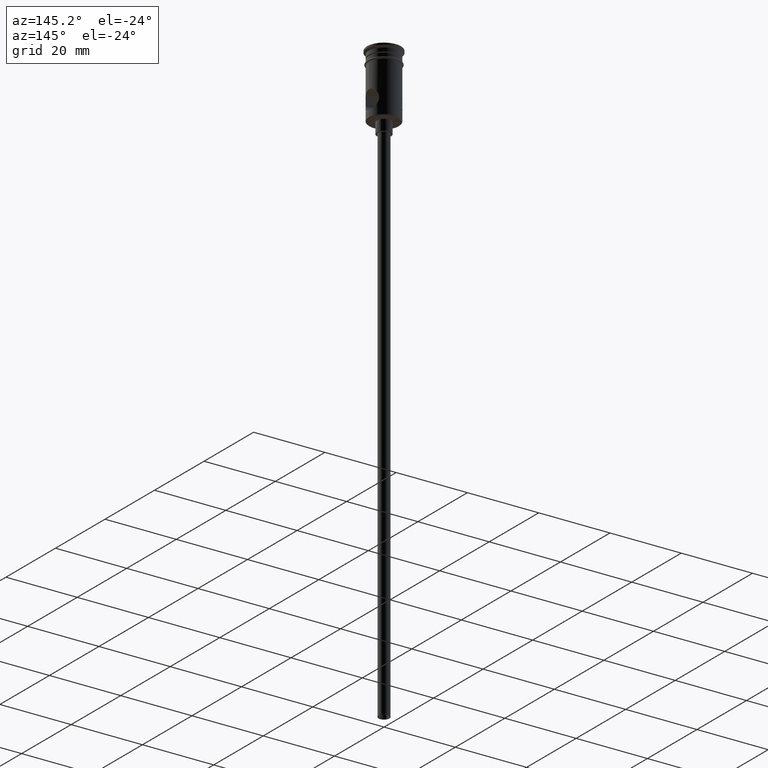
[diagram: clean part render]
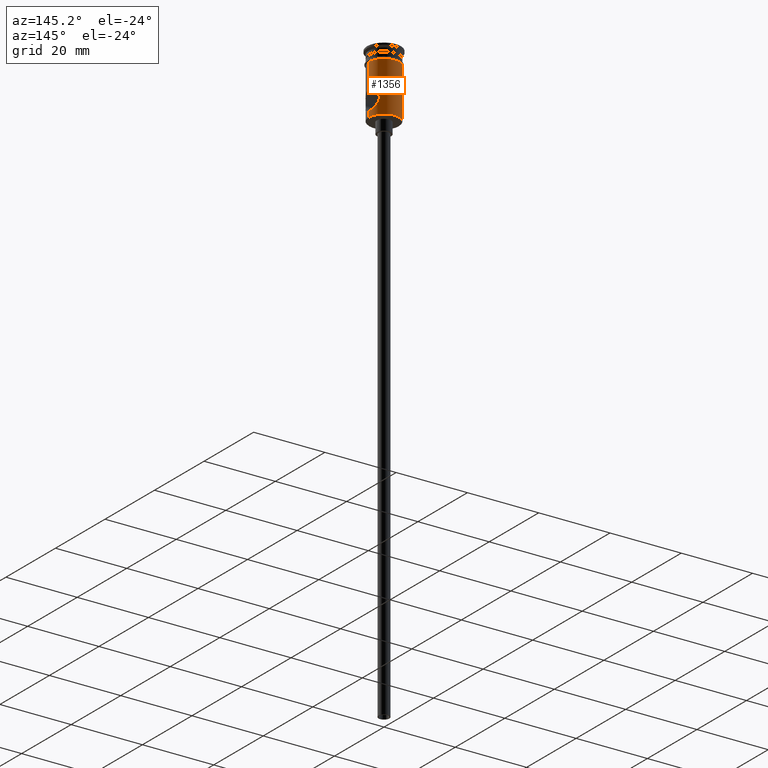
[diagram: same view with one face highlighted and labeled with its STEP entity id]
A machine part, auxiliary view. The second image highlights one B-rep face of the part: STEP entity #1356.
In plain terms, the highlighted cylindrical surface (edge-blend (fillet) strip) has radius 4.25 mm, axis along (-0, -0, 1).
Its self-contained STEP definition (entity closure, byte-faithful):
#21 = LINE ( 'NONE', #1350, #1264 ) ;
#47 = B_SPLINE_CURVE_WITH_KNOTS ( 'NONE', 3,
 ( #1093, #986, #1223, #672, #798, #1105, #126, #450, #1349, #349, #476, #56, #272, #932, #715, #602, #1036, #1392, #279, #412, #1297, #270, #1151, #328, #1218, #1206, #549, #192, #436, #1102, #206, #1304 ),
 .UNSPECIFIED., .F., .F.,
 ( 4, 2, 2, 2, 2, 2, 2, 2, 2, 2, 2, 2, 2, 2, 2, 4 ),
 ( 0.000000000000000000, 0.0005541219304595177862, 0.001108243860919035572, 0.002216487721838075482, 0.002770609652297595545, 0.003324731582757115608, 0.003878853513216635237, 0.004432975443676155300, 0.004987097374135674929, 0.005541219304595194559, 0.006095341235054715055, 0.006649463165514233817, 0.007203585095973753447, 0.007757707026433273076, 0.008311828956892794440, 0.008865950887352312335 ),
 .UNSPECIFIED. ) ;
#51 = ORIENTED_EDGE ( 'NONE', *, *, #1226, .T. ) ;
#53 = EDGE_CURVE ( 'NONE', #372, #1227, #21, .T. ) ;
#56 = CARTESIAN_POINT ( 'NONE',  ( 3.362015581049109247, 2.601310859038222123, -14.40956275273693521 ) ) ;
#60 = CARTESIAN_POINT ( 'NONE',  ( -4.237714452335332282, 0.3710614493120016899, -10.76887567396049938 ) ) ;
#69 = EDGE_CURVE ( 'NONE', #656, #1109, #170, .T. ) ;
#91 = CARTESIAN_POINT ( 'NONE',  ( -3.712306572358252232, 2.073768640790504936, -11.68546380521985384 ) ) ;
#92 = ORIENTED_EDGE ( 'NONE', *, *, #1185, .F. ) ;
#106 = CARTESIAN_POINT ( 'NONE',  ( -3.463585092110388786, 2.464449046115352537, -12.26684130713697840 ) ) ;
#124 = B_SPLINE_CURVE_WITH_KNOTS ( 'NONE', 3,
 ( #836, #1037, #60, #962, #426, #1332, #863, #91, #200, #317, #106, #448, #339, #781, #418, #551, #1424, #976, #895, #1347, #770, #1220, #670, #984, #530, #756, #521, #1433, #872, #761 ),
 .UNSPECIFIED., .F., .F.,
 ( 4, 2, 2, 2, 2, 2, 2, 2, 2, 2, 2, 2, 2, 2, 4 ),
 ( 0.008865950887352312335, 0.009419240771521925071, 0.009972530655691537807, 0.01107911042403076501, 0.01163240030820037949, 0.01218569019236999396, 0.01273898007653961016, 0.01329226996070922463, 0.01384555984487884084, 0.01439884972904845531, 0.01495213961321806978, 0.01550542949738768425, 0.01605871938155729872, 0.01661200926572691319, 0.01771858903406614560 ),
 .UNSPECIFIED. ) ;
#126 = CARTESIAN_POINT ( 'NONE',  ( 3.903649545419221045, 1.703087824547434570, -15.68708491731533883 ) ) ;
#170 = LINE ( 'NONE', #267, #1215 ) ;
#187 = VERTEX_POINT ( 'NONE', #796 ) ;
#192 = CARTESIAN_POINT ( 'NONE',  ( 4.155442691875919969, 0.9081020294093200551, -10.89791699256592494 ) ) ;
#200 = CARTESIAN_POINT ( 'NONE',  ( -3.647847344689137294, 2.183825531822105592, -11.81953350730051788 ) ) ;
#205 = ORIENTED_EDGE ( 'NONE', *, *, #1290, .F. ) ;
#206 = CARTESIAN_POINT ( 'NONE',  ( 4.249999999999996447, 0.1849937454683881766, -10.74999999999999822 ) ) ;
#247 = AXIS2_PLACEMENT_3D ( 'NONE', #300, #741, #935 ) ;
#267 = CARTESIAN_POINT ( 'NONE',  ( 4.249999999999997335, 0.000000000000000000, 0.000000000000000000 ) ) ;
#270 = CARTESIAN_POINT ( 'NONE',  ( 3.647647208285519582, 2.184164315469646400, -11.81995465034544956 ) ) ;
#272 = CARTESIAN_POINT ( 'NONE',  ( 3.317732867736307600, 2.656581032706775591, -14.23383826006679698 ) ) ;
#279 = CARTESIAN_POINT ( 'NONE',  ( 3.360185467375182533, 2.603675625495278645, -12.59704781336165524 ) ) ;
#283 = DIRECTION ( 'NONE',  ( -0.000000000000000000, -0.000000000000000000, 1.000000000000000000 ) ) ;
#300 = CARTESIAN_POINT ( 'NONE',  ( 0.000000000000000000, 0.000000000000000000, -3.799999999999998934 ) ) ;
#317 = CARTESIAN_POINT ( 'NONE',  ( -3.523640592887602896, 2.379042071033715455, -12.10959703295216450 ) ) ;
#328 = CARTESIAN_POINT ( 'NONE',  ( 3.840622235673528007, 1.825278692726477692, -11.43557704835951760 ) ) ;
#329 = CARTESIAN_POINT ( 'NONE',  ( 4.249999999999997335, 0.000000000000000000, -17.79999999999995808 ) ) ;
#339 = CARTESIAN_POINT ( 'NONE',  ( -3.317391764057896264, 2.657012432191005136, -12.76717152618819284 ) ) ;
#349 = CARTESIAN_POINT ( 'NONE',  ( 3.523702571072897083, 2.378944658106735499, -14.89054770374115755 ) ) ;
#350 = DIRECTION ( 'NONE',  ( -0.000000000000000000, -0.000000000000000000, 1.000000000000000000 ) ) ;
#368 = ORIENTED_EDGE ( 'NONE', *, *, #615, .F. ) ;
#370 = DIRECTION ( 'NONE',  ( -0.000000000000000000, -0.000000000000000000, 1.000000000000000000 ) ) ;
#372 = VERTEX_POINT ( 'NONE', #1381 ) ;
#384 = CIRCLE ( 'NONE', #247, 4.249999999999999112 ) ;
#411 = CARTESIAN_POINT ( 'NONE',  ( 0.000000000000000000, 0.000000000000000000, -17.79999999999995808 ) ) ;
#412 = CARTESIAN_POINT ( 'NONE',  ( 3.463282699767082029, 2.464882569099720477, -12.26760260682620718 ) ) ;
#418 = CARTESIAN_POINT ( 'NONE',  ( -3.240527330953798746, 2.749815025658500112, -13.31270839782863291 ) ) ;
#426 = CARTESIAN_POINT ( 'NONE',  ( -4.155620439744574846, 0.9072158869068334131, -10.89763742324026552 ) ) ;
#436 = CARTESIAN_POINT ( 'NONE',  ( 4.190033994520313776, 0.7344077564868169983, -10.84346068291941201 ) ) ;
#448 = CARTESIAN_POINT ( 'NONE',  ( -3.360805570480984716, 2.602867017081773149, -12.59486312964815191 ) ) ;
#450 = CARTESIAN_POINT ( 'NONE',  ( 3.713419268557901276, 2.071747888570477425, -15.31678227358735889 ) ) ;
#454 = CARTESIAN_POINT ( 'NONE',  ( 4.249999999999997335, -5.964156999285768506E-20, -10.75000000000000000 ) ) ;
#467 = DIRECTION ( 'NONE',  ( -0.000000000000000000, -0.000000000000000000, 1.000000000000000000 ) ) ;
#476 = CARTESIAN_POINT ( 'NONE',  ( 3.464973689711408511, 2.462503661352578810, -14.73701184486718319 ) ) ;
#497 = DIRECTION ( 'NONE',  ( -1.000000000000000000, 0.000000000000000000, 0.000000000000000000 ) ) ;
#521 = CARTESIAN_POINT ( 'NONE',  ( -4.067922794682170107, 1.242497466100458858, -15.95989443293908927 ) ) ;
#530 = CARTESIAN_POINT ( 'NONE',  ( -3.901047162632663934, 1.693811570780205056, -15.67366377900273555 ) ) ;
#538 = CIRCLE ( 'NONE', #1388, 4.249999999999997335 ) ;
#546 = VERTEX_POINT ( 'NONE', #454 ) ;
#549 = CARTESIAN_POINT ( 'NONE',  ( 4.068014576300313934, 1.242421292593817173, -11.03994418658763088 ) ) ;
#551 = CARTESIAN_POINT ( 'NONE',  ( -3.240215677518331283, 2.750182252353511991, -13.68181968656044667 ) ) ;
#602 = CARTESIAN_POINT ( 'NONE',  ( 3.240228426298894515, 2.750167230217083425, -13.31605301161300225 ) ) ;
#610 = ORIENTED_EDGE ( 'NONE', *, *, #954, .T. ) ;
#615 = EDGE_CURVE ( 'NONE', #372, #187, #124, .T. ) ;
#656 = VERTEX_POINT ( 'NONE', #329 ) ;
#670 = CARTESIAN_POINT ( 'NONE',  ( -3.712426123095563746, 2.073528200962002188, -15.31476372687120246 ) ) ;
#672 = CARTESIAN_POINT ( 'NONE',  ( 4.190603293377628269, 0.7309107395663115847, -16.15743406878304711 ) ) ;
#683 = CARTESIAN_POINT ( 'NONE',  ( 4.249999999999997335, 0.000000000000000000, -16.25000000000000000 ) ) ;
#696 = CARTESIAN_POINT ( 'NONE',  ( 0.000000000000000000, 0.000000000000000000, 0.000000000000000000 ) ) ;
#703 = EDGE_LOOP ( 'NONE', ( #51, #610, #368, #1233, #92, #205, #724, #1073 ) ) ;
#715 = CARTESIAN_POINT ( 'NONE',  ( 3.240514175250544415, 2.749830527279015335, -13.68891363090301461 ) ) ;
#716 = FACE_OUTER_BOUND ( 'NONE', #703, .T. ) ;
#724 = ORIENTED_EDGE ( 'NONE', *, *, #1014, .F. ) ;
#741 = DIRECTION ( 'NONE',  ( -0.000000000000000000, -0.000000000000000000, 1.000000000000000000 ) ) ;
#756 = CARTESIAN_POINT ( 'NONE',  ( -4.015423691679791851, 1.401263422304992012, -15.87281956388753379 ) ) ;
#761 = CARTESIAN_POINT ( 'NONE',  ( -4.249999999999997335, 0.000000000000000000, -16.25000000000000000 ) ) ;
#770 = CARTESIAN_POINT ( 'NONE',  ( -3.522745161808382264, 2.380353866525853679, -14.88812900666103900 ) ) ;
#781 = CARTESIAN_POINT ( 'NONE',  ( -3.256546954943039474, 2.731246073005494157, -13.12980069484267176 ) ) ;
#796 = CARTESIAN_POINT ( 'NONE',  ( -4.249999999999997335, 0.000000000000000000, -16.25000000000000000 ) ) ;
#798 = CARTESIAN_POINT ( 'NONE',  ( 4.155334731455366359, 0.9083529674580627100, -16.10190042141340427 ) ) ;
#828 = DIRECTION ( 'NONE',  ( -0.000000000000000000, -0.000000000000000000, 1.000000000000000000 ) ) ;
#836 = CARTESIAN_POINT ( 'NONE',  ( -4.249999999999997335, 5.205345311974756415E-16, -10.75000000000000000 ) ) ;
#847 = CARTESIAN_POINT ( 'NONE',  ( -4.249999999999999112, 5.204748896376249713E-16, -3.799999999999998934 ) ) ;
#863 = CARTESIAN_POINT ( 'NONE',  ( -3.903270111302728829, 1.704091631636142301, -11.31349511279738351 ) ) ;
#872 = CARTESIAN_POINT ( 'NONE',  ( -4.249999999999997335, 0.3748030667232212787, -16.25000000000000000 ) ) ;
#895 = CARTESIAN_POINT ( 'NONE',  ( -3.360420657424080026, 2.603382055344573232, -14.40388255281498076 ) ) ;
#924 = DIRECTION ( 'NONE',  ( 1.000000000000000000, 0.000000000000000000, 0.000000000000000000 ) ) ;
#932 = CARTESIAN_POINT ( 'NONE',  ( 3.257287351234153583, 2.730357719509510339, -13.87561695753797686 ) ) ;
#935 = DIRECTION ( 'NONE',  ( 1.000000000000000000, 0.000000000000000000, 0.000000000000000000 ) ) ;
#954 = EDGE_CURVE ( 'NONE', #1188, #187, #1271, .T. ) ;
#962 = CARTESIAN_POINT ( 'NONE',  ( -4.190207837038134819, 0.7335316360740457009, -10.84318649086376318 ) ) ;
#976 = CARTESIAN_POINT ( 'NONE',  ( -3.316708597254388824, 2.657854032008955869, -14.22930869200700954 ) ) ;
#982 = CARTESIAN_POINT ( 'NONE',  ( 4.249999999999999112, 0.000000000000000000, -3.799999999999998934 ) ) ;
#984 = CARTESIAN_POINT ( 'NONE',  ( -3.839379489766063802, 1.827783371516099153, -15.56206074870781109 ) ) ;
#986 = CARTESIAN_POINT ( 'NONE',  ( 4.249999999999999112, 0.1876833508229764913, -16.25000000000000355 ) ) ;
#1014 = EDGE_CURVE ( 'NONE', #1109, #546, #47, .T. ) ;
#1016 = CARTESIAN_POINT ( 'NONE',  ( 4.249999999999997335, 0.000000000000000000, 0.000000000000000000 ) ) ;
#1028 = VERTEX_POINT ( 'NONE', #982 ) ;
#1036 = CARTESIAN_POINT ( 'NONE',  ( 3.256261808067939967, 2.731577754047776807, -13.13260952066415577 ) ) ;
#1037 = CARTESIAN_POINT ( 'NONE',  ( -4.249999999999997335, 0.1847159666058112992, -10.75000000000000000 ) ) ;
#1039 = DIRECTION ( 'NONE',  ( -0.000000000000000000, -0.000000000000000000, 1.000000000000000000 ) ) ;
#1073 = ORIENTED_EDGE ( 'NONE', *, *, #69, .F. ) ;
#1093 = CARTESIAN_POINT ( 'NONE',  ( 4.249999999999997335, 0.000000000000000000, -16.25000000000000000 ) ) ;
#1102 = CARTESIAN_POINT ( 'NONE',  ( 4.237534661787413448, 0.3728801659703385174, -10.76915465875327271 ) ) ;
#1105 = CARTESIAN_POINT ( 'NONE',  ( 4.025284254402694550, 1.406141545853144326, -15.89065464230831459 ) ) ;
#1109 = VERTEX_POINT ( 'NONE', #683 ) ;
#1128 = LINE ( 'NONE', #1016, #1411 ) ;
#1137 = CYLINDRICAL_SURFACE ( 'NONE', #1212, 4.249999999999997335 ) ;
#1151 = CARTESIAN_POINT ( 'NONE',  ( 3.712446595946066186, 2.073586683869199199, -11.68513838162200358 ) ) ;
#1185 = EDGE_CURVE ( 'NONE', #1028, #1227, #384, .T. ) ;
#1188 = VERTEX_POINT ( 'NONE', #1306 ) ;
#1206 = CARTESIAN_POINT ( 'NONE',  ( 4.015772538107726497, 1.400147493956907407, -11.12661391491455909 ) ) ;
#1212 = AXIS2_PLACEMENT_3D ( 'NONE', #696, #467, #924 ) ;
#1215 = VECTOR ( 'NONE', #283, 1000.000000000000000 ) ;
#1218 = CARTESIAN_POINT ( 'NONE',  ( 3.902301534695393759, 1.690823709015212728, -11.32411174488600203 ) ) ;
#1220 = CARTESIAN_POINT ( 'NONE',  ( -3.646730217503171279, 2.185675347730814622, -15.17803752739326839 ) ) ;
#1223 = CARTESIAN_POINT ( 'NONE',  ( 4.237633467721872549, 0.3712803050584276843, -16.23099565620633911 ) ) ;
#1226 = EDGE_CURVE ( 'NONE', #656, #1188, #538, .T. ) ;
#1227 = VERTEX_POINT ( 'NONE', #847 ) ;
#1233 = ORIENTED_EDGE ( 'NONE', *, *, #53, .T. ) ;
#1264 = VECTOR ( 'NONE', #350, 1000.000000000000000 ) ;
#1266 = CARTESIAN_POINT ( 'NONE',  ( -4.249999999999997335, 5.204748896376248727E-16, 0.000000000000000000 ) ) ;
#1271 = LINE ( 'NONE', #1266, #1409 ) ;
#1290 = EDGE_CURVE ( 'NONE', #546, #1028, #1128, .T. ) ;
#1297 = CARTESIAN_POINT ( 'NONE',  ( 3.523327046384830741, 2.379510545741978067, -12.11037569948939741 ) ) ;
#1304 = CARTESIAN_POINT ( 'NONE',  ( 4.249999999999997335, -5.964156999285768506E-20, -10.75000000000000000 ) ) ;
#1306 = CARTESIAN_POINT ( 'NONE',  ( -4.249999999999997335, 5.204748896376248727E-16, -17.79999999999995808 ) ) ;
#1332 = CARTESIAN_POINT ( 'NONE',  ( -4.024918142879832850, 1.407629767315599523, -11.10993618836867469 ) ) ;
#1347 = CARTESIAN_POINT ( 'NONE',  ( -3.463853683506851411, 2.464090659896389646, -14.73404173964449981 ) ) ;
#1349 = CARTESIAN_POINT ( 'NONE',  ( 3.647785336404484102, 2.183922992056437806, -15.18032168571427043 ) ) ;
#1350 = CARTESIAN_POINT ( 'NONE',  ( -4.249999999999997335, 5.204748896376248727E-16, 0.000000000000000000 ) ) ;
#1356 = ADVANCED_FACE ( 'NONE', ( #716 ), #1137, .T. ) ;
#1381 = CARTESIAN_POINT ( 'NONE',  ( -4.249999999999997335, 5.205345311974756415E-16, -10.75000000000000000 ) ) ;
#1388 = AXIS2_PLACEMENT_3D ( 'NONE', #411, #828, #497 ) ;
#1392 = CARTESIAN_POINT ( 'NONE',  ( 3.316522469792354322, 2.658088918086265906, -12.77126404352310196 ) ) ;
#1409 = VECTOR ( 'NONE', #1039, 1000.000000000000000 ) ;
#1411 = VECTOR ( 'NONE', #370, 1000.000000000000000 ) ;
#1424 = CARTESIAN_POINT ( 'NONE',  ( -3.256642946224108215, 2.731120776416927409, -13.87021416548673969 ) ) ;
#1433 = CARTESIAN_POINT ( 'NONE',  ( -4.198035567893796838, 0.7457751924957479739, -16.17129962006159261 ) ) ;